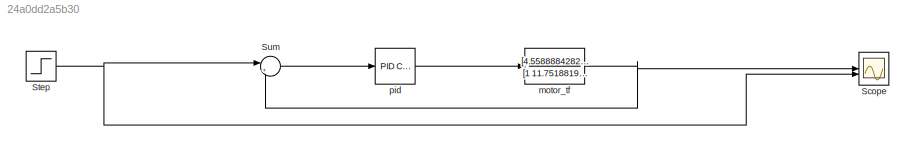
MODEL slx_24a0dd2a5b30
KIND model
CONFIG AbsTol = auto
CONFIG EnableMultiTasking = off
CONFIG FixedStep = auto
CONFIG MaxStep = auto
CONFIG MinStep = auto
CONFIG RelTol = 1e-3
CONFIG SampleTimeConstraint = Unconstrained
CONFIG SolverName = VariableStepAuto
CONFIG StartTime = 0.0
CONFIG StopTime = 10.0
BLOCK [Scope] Scope
  Floating = off
  NumInputPorts = 2
  ScopeSpecificationString = Simulink.scopes.TimeScopeBlockCfg('CurrentConfiguration', extmgr.ConfigurationSet(extmgr.Configuration('Core','General UI',true),extmgr.Configuration('Core','Source UI',true),extmgr.Configuration('Sources','WiredSimulink',true),extmgr.Configuration('Visuals','Time Domain',true,'SerializedDisplays',{struct('MinYLimReal','-5025.88925','MaxYLimReal','7230.87034','YLabelReal','','MinYLimMag','  0.0000...<+1357ch>
BLOCK [Step] Step
  After = 3.14
  SampleTime = 0
  Time = 0.1
BLOCK [Sum] Sum
  Inputs = |+-
BLOCK [TransferFcn] motor_tf
  ContinuousStateAttributes = 'speed'
  Denominator = [1 11.751881962857844 28.926777183971392 31.230691482263310]
  Numerator = [4.558888428221904e+02]
BLOCK [Reference] pid  REF=slpidlib/PID Controller
  LibrarySourceBlock = simulink/Continuous/PID Controller
  SourceBlock = slpidlib/PID Controller
  SourceType = PID 1dof
NET Step:1 -> Scope:2, Sum:1
LINE Sum:1 -> pid:1
NET motor_tf:1 -> Scope:1, Sum:2
LINE pid:1 -> motor_tf:1
note: NET lines group one-source signal fan-out (src -> all destinations, sorted); 1:1 wires keep LINE
